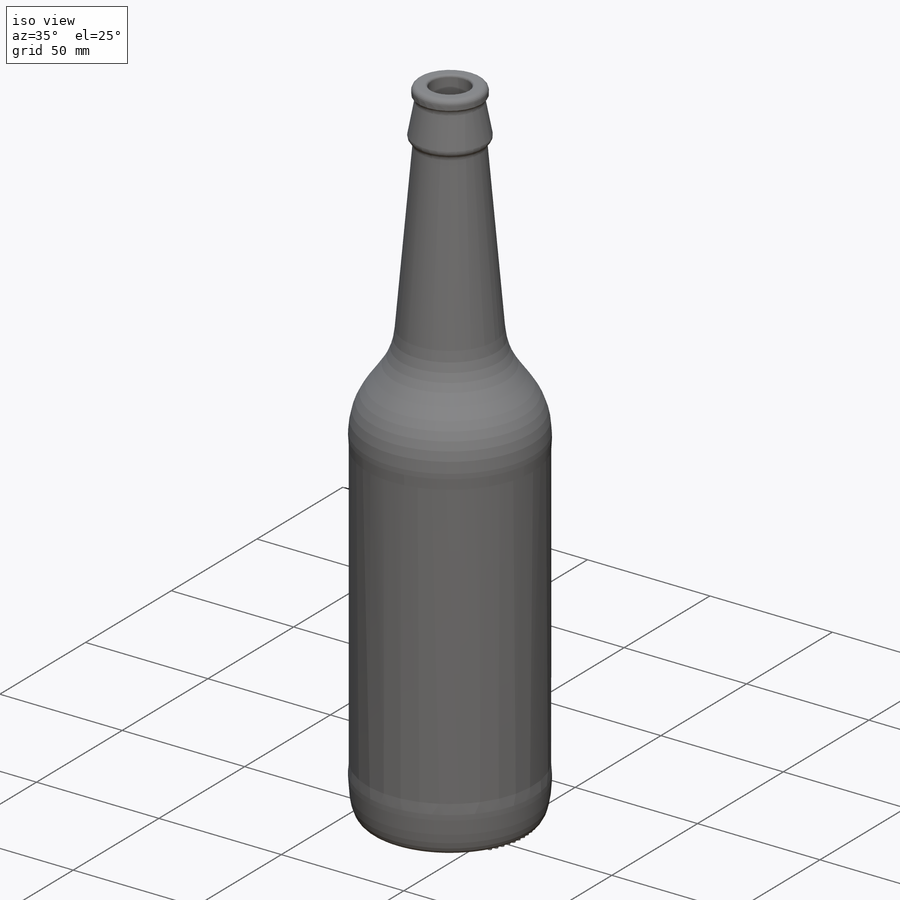
[diagram: iso view]
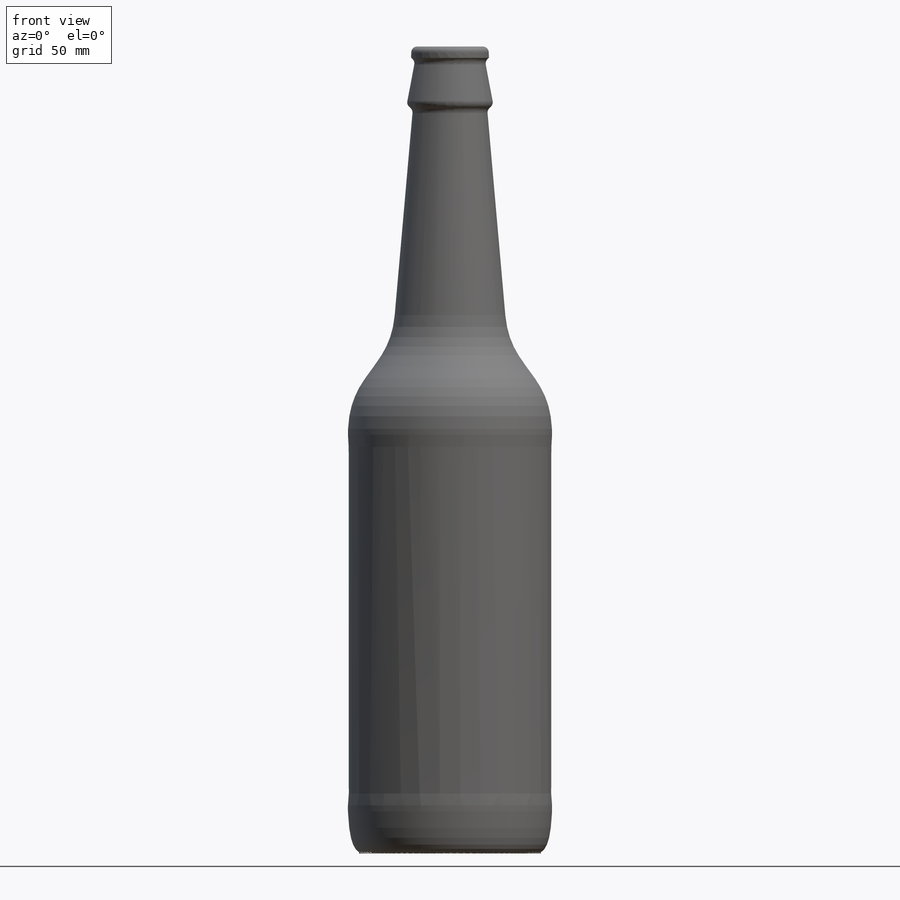
[diagram: front view]
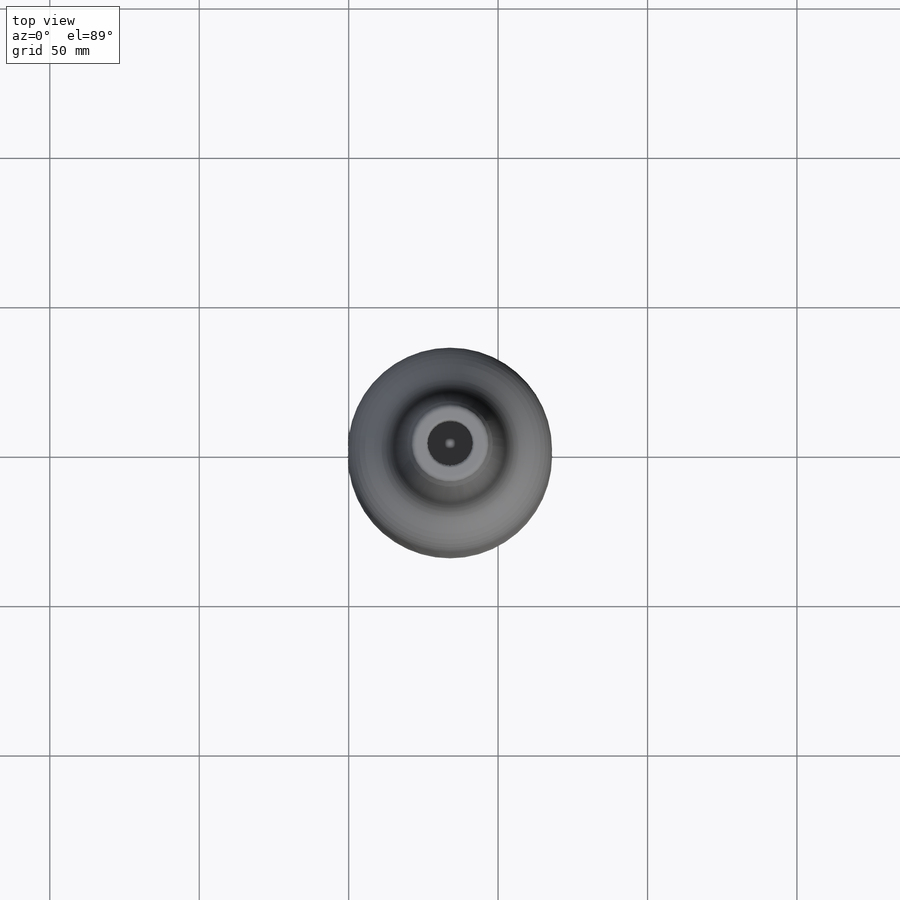
[diagram: top view]
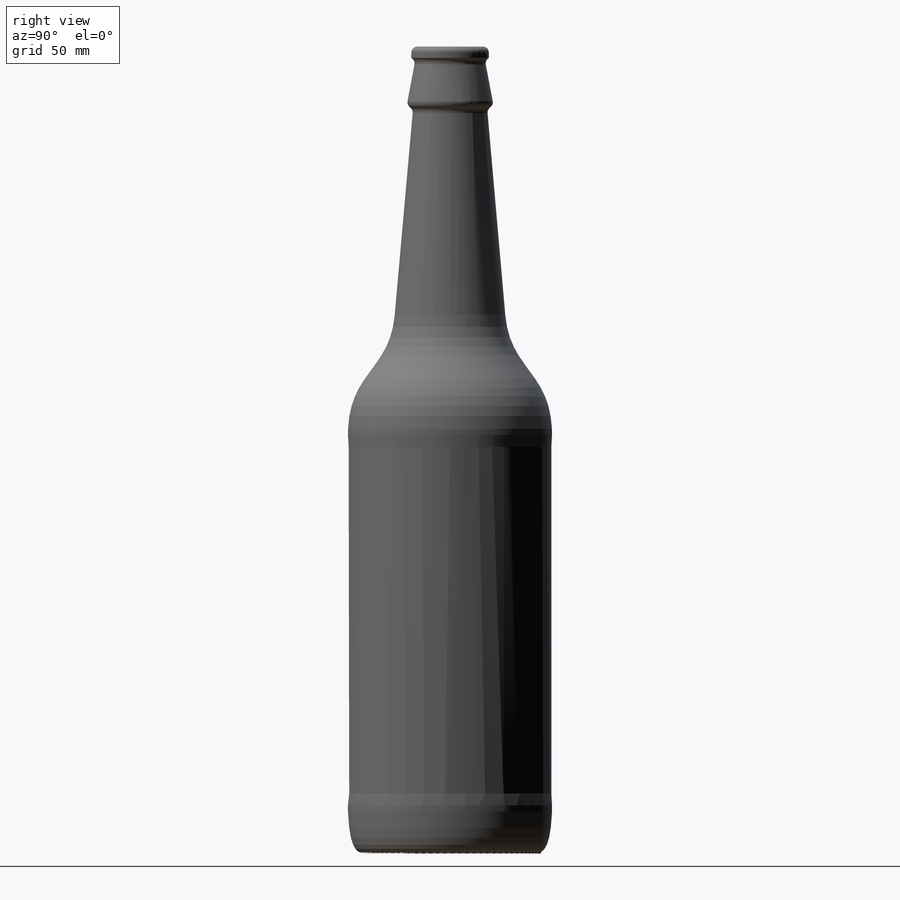
[diagram: right view]
SOLIDWORKS PART (.sldprt)
format: sldprt  version: not decoded by parser v0  size: 898,560 bytes
history: native  units: mm
features: plane x3, sketch x2, material x1, revolve x1, extrude x1, pattern_circular x1 (+8 scaffold rows collapsed)
feature tree (17):
  scaffold x8  (default folders/planes/origin — collapsed)
  material  "Material <nicht festgelegt>"
  plane  "Ebene vorne"
  plane  "Ebene oben"
  plane  "Ebene rechts"
  sketch  "Skizze1"  dims[c1.D9=84.99mm c1.D10=~66.690121mm c2.D9=~106.83876mm c2.D10=~71.498933mm c2.D4=~63.540715mm c2.D17=2.0mm c2.D18=10.0mm c2.D19=10.0mm c2.D3=2.0mm c2.D20=2.0mm c2.D21=2.0mm c3.D17=2.0mm c3.D1=116.0mm c3.D2=67.8mm c3.D3=4.0mm c3.D4=68.3mm c3.D5=40.1mm c3.D6=18.5mm c3.D7=68.5mm c3.D8=25.0mm c4.D6=37.0mm c4.D9=68.5mm c5.D9=~5.005833deg c5.D10=4.0mm c6.D10=~3.576334deg c6.D9=5.1deg c7.D10=68.5mm c8.D10=~5.005833deg c9.D10=4.0mm c10.D10=0.0deg c10.D11=4.0mm c10.D12=2.0mm c10.D13=14.0mm c10.D14=68.3mm c10.D4=68.3mm c11.D10=270.0mm c11.D4=14.0mm c12.D10=57.0mm c12.D13=15.1mm c12.D15=3.0mm c12.D16=3.0mm c13.D13=15.1mm c13.D15=270.0mm c13.D4=26.0mm c13.D5=29.0mm c13.D12=2.0mm c13.D22=3.8mm]
  revolve  "Rotation1"  Angle=360deg
  sketch  "Skizze2"  dims[c1.D2=~1.132553mm c1.D1=28.0mm c2.D2=0.0mm c2.D1=0.0mm]
  extrude  "Aufsatz-Linear austragen1"  Depth=1.1mm
  pattern_circular  "Kreismuster1"  Count=76 Angle=360deg
decode coverage: 5 of 5 modeling features carry decoded parameters
note: ~ marks probable driven/reference dimensions
note: suppression state not decoded; provenance and decode notes live in map.json
